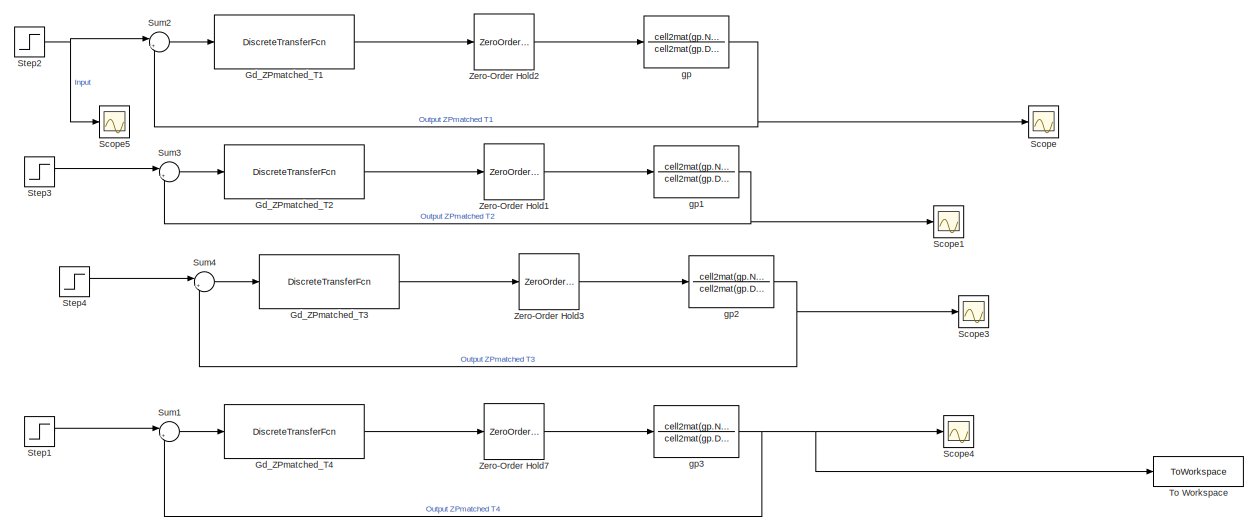
[diagram: root canvas - part 1/2, full width, top band]
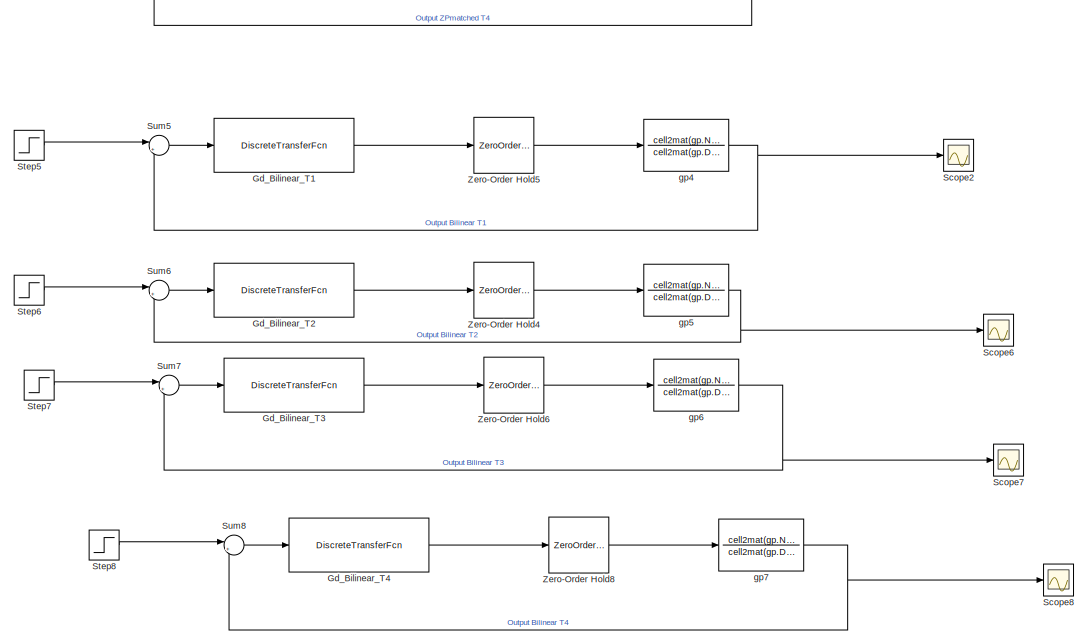
[diagram: root canvas - part 2/2, full width, bottom band]
MODEL slx_0fc6295562f9
KIND model
CONFIG AbsTol = auto
CONFIG EnableMultiTasking = off
CONFIG FixedStep = auto
CONFIG MaxStep = auto
CONFIG MinStep = auto
CONFIG RelTol = 1e-3
CONFIG SampleTimeConstraint = Unconstrained
CONFIG SolverName = VariableStepAuto
CONFIG StartTime = 0.0
CONFIG StopTime = 5
BLOCK [DiscreteTransferFcn] Gd_Bilinear_T1
  Denominator = cell2mat(Gd_Bilinear_T1.Denominator)
  InputPortMap = u0
  Numerator = cell2mat(Gd_Bilinear_T1.Numerator)
  Ports = [1, 1]
  SampleTime = Ts(1)
BLOCK [DiscreteTransferFcn] Gd_Bilinear_T2
  Denominator = cell2mat(Gd_Bilinear_T2.Denominator)
  InputPortMap = u0
  Numerator = cell2mat(Gd_Bilinear_T2.Numerator)
  Ports = [1, 1]
  SampleTime = Ts(2)
BLOCK [DiscreteTransferFcn] Gd_Bilinear_T3
  Denominator = cell2mat(Gd_Bilinear_T3.Denominator)
  InputPortMap = u0
  Numerator = cell2mat(Gd_Bilinear_T3.Numerator)
  Ports = [1, 1]
  SampleTime = Ts(3)
BLOCK [DiscreteTransferFcn] Gd_Bilinear_T4
  Denominator = cell2mat(Gd_Bilinear_T3.Denominator)
  InputPortMap = u0
  Numerator = cell2mat(Gd_Bilinear_T3.Numerator)
  Ports = [1, 1]
  SampleTime = Ts(4)
BLOCK [DiscreteTransferFcn] Gd_ZPmatched_T1
  Denominator = cell2mat(Gd_ZPmatched_T1.Denominator)
  InputPortMap = u0
  Numerator = cell2mat(Gd_ZPmatched_T1.Numerator)
  Ports = [1, 1]
  SampleTime = Ts(1)
BLOCK [DiscreteTransferFcn] Gd_ZPmatched_T2
  Denominator = cell2mat(Gd_ZPmatched_T2.Denominator)
  InputPortMap = u0
  Numerator = cell2mat(Gd_ZPmatched_T2.Numerator)
  Ports = [1, 1]
  SampleTime = Ts(2)
BLOCK [DiscreteTransferFcn] Gd_ZPmatched_T3
  Denominator = cell2mat(Gd_ZPmatched_T3.Denominator)
  InputPortMap = u0
  Numerator = cell2mat(Gd_ZPmatched_T3.Numerator)
  Ports = [1, 1]
  SampleTime = Ts(3)
BLOCK [DiscreteTransferFcn] Gd_ZPmatched_T4
  Denominator = cell2mat(Gd_ZPmatched_T4.Denominator)
  InputPortMap = u0
  Numerator = cell2mat(Gd_ZPmatched_T4.Numerator)
  Ports = [1, 1]
  SampleTime = Ts(4)
BLOCK [Scope] Scope
  Floating = off
  NumInputPorts = 1
  Ports = [1]
  ScopeSpecificationString = Simulink.scopes.TimeScopeBlockCfg('CurrentConfiguration', extmgr.ConfigurationSet(extmgr.Configuration('Core','General UI',true),extmgr.Configuration('Core','Source UI',true),extmgr.Configuration('Sources','WiredSimulink',true,'DataLoggingSaveFormat','Array','DataLoggingLimitDataPoints',true,'DataLoggingDecimation','1'),extmgr.Configuration('Visuals','Time Domain',true,'SerializedDisplays',{struct...<+2344ch>
BLOCK [Scope] Scope1
  Floating = off
  NumInputPorts = 1
  Ports = [1]
  ScopeSpecificationString = Simulink.scopes.TimeScopeBlockCfg('CurrentConfiguration', extmgr.ConfigurationSet(extmgr.Configuration('Core','General UI',true),extmgr.Configuration('Core','Source UI',true),extmgr.Configuration('Sources','WiredSimulink',true,'DataLoggingVariableName','ScopeData1','DataLoggingSaveFormat','Array','DataLoggingLimitDataPoints',true,'DataLoggingDecimation','1'),extmgr.Configuration('Visuals','Time Do...<+2191ch>
BLOCK [Scope] Scope2
  Floating = off
  NumInputPorts = 1
  Ports = [1]
  ScopeSpecificationString = Simulink.scopes.TimeScopeBlockCfg('CurrentConfiguration', extmgr.ConfigurationSet(extmgr.Configuration('Core','General UI',true),extmgr.Configuration('Core','Source UI',true),extmgr.Configuration('Sources','WiredSimulink',true,'DataLoggingVariableName','ScopeData2','DataLoggingSaveFormat','Array','DataLoggingLimitDataPoints',true,'DataLoggingDecimation','1'),extmgr.Configuration('Visuals','Time Do...<+2382ch>
BLOCK [Scope] Scope3
  Floating = off
  NumInputPorts = 1
  Ports = [1]
  ScopeSpecificationString = Simulink.scopes.TimeScopeBlockCfg('CurrentConfiguration', extmgr.ConfigurationSet(extmgr.Configuration('Core','General UI',true),extmgr.Configuration('Core','Source UI',true),extmgr.Configuration('Sources','WiredSimulink',true,'DataLoggingVariableName','ScopeData3','DataLoggingSaveFormat','Array','DataLoggingLimitDataPoints',true,'DataLoggingDecimation','1'),extmgr.Configuration('Visuals','Time Do...<+1723ch>
BLOCK [Scope] Scope4
  Floating = off
  NumInputPorts = 1
  Ports = [1]
  ScopeSpecificationString = Simulink.scopes.TimeScopeBlockCfg('CurrentConfiguration', extmgr.ConfigurationSet(extmgr.Configuration('Core','General UI',true),extmgr.Configuration('Core','Source UI',true),extmgr.Configuration('Sources','WiredSimulink',true,'DataLoggingVariableName','ScopeData4','DataLoggingSaveFormat','Array','DataLoggingLimitDataPoints',true,'DataLoggingDecimation','1'),extmgr.Configuration('Visuals','Time Do...<+1661ch>
BLOCK [Scope] Scope5
  Floating = off
  NumInputPorts = 1
  Ports = [1]
  ScopeSpecificationString = Simulink.scopes.TimeScopeBlockCfg('CurrentConfiguration', extmgr.ConfigurationSet(extmgr.Configuration('Core','General UI',true),extmgr.Configuration('Core','Source UI',true),extmgr.Configuration('Sources','WiredSimulink',true,'DataLoggingVariableName','ScopeData5','DataLoggingSaveFormat','Array','DataLoggingLimitDataPoints',true,'DataLoggingDecimation','1'),extmgr.Configuration('Visuals','Time Do...<+1613ch>
BLOCK [Scope] Scope6
  Floating = off
  NumInputPorts = 1
  Ports = [1]
  ScopeSpecificationString = Simulink.scopes.TimeScopeBlockCfg('CurrentConfiguration', extmgr.ConfigurationSet(extmgr.Configuration('Core','General UI',true),extmgr.Configuration('Core','Source UI',true),extmgr.Configuration('Sources','WiredSimulink',true,'DataLoggingVariableName','ScopeData6','DataLoggingSaveFormat','Array','DataLoggingLimitDataPoints',true,'DataLoggingDecimation','1'),extmgr.Configuration('Visuals','Time Do...<+2042ch>
BLOCK [Scope] Scope7
  Floating = off
  NumInputPorts = 1
  Ports = [1]
  ScopeSpecificationString = Simulink.scopes.TimeScopeBlockCfg('CurrentConfiguration', extmgr.ConfigurationSet(extmgr.Configuration('Core','General UI',true),extmgr.Configuration('Core','Source UI',true),extmgr.Configuration('Sources','WiredSimulink',true,'DataLoggingVariableName','ScopeData7','DataLoggingSaveFormat','Array','DataLoggingLimitDataPoints',true,'DataLoggingDecimation','1'),extmgr.Configuration('Visuals','Time Do...<+1660ch>
BLOCK [Scope] Scope8
  Floating = off
  NumInputPorts = 1
  Ports = [1]
  ScopeSpecificationString = Simulink.scopes.TimeScopeBlockCfg('CurrentConfiguration', extmgr.ConfigurationSet(extmgr.Configuration('Core','General UI',true),extmgr.Configuration('Core','Source UI',true),extmgr.Configuration('Sources','WiredSimulink',true,'DataLoggingVariableName','ScopeData8','DataLoggingSaveFormat','Array','DataLoggingLimitDataPoints',true,'DataLoggingDecimation','1'),extmgr.Configuration('Visuals','Time Do...<+2126ch>
BLOCK [Step] Step1
  After = 0.0001
  SampleTime = 0
  Time = 0
BLOCK [Step] Step2
  After = 0.0001
  SampleTime = 0
  Time = 0
BLOCK [Step] Step3
  After = 0.0001
  SampleTime = 0
  Time = 0
BLOCK [Step] Step4
  After = 0.0001
  SampleTime = 0
  Time = 0
BLOCK [Step] Step5
  After = 0.0001
  SampleTime = 0
  Time = 0
BLOCK [Step] Step6
  After = 0.0001
  SampleTime = 0
  Time = 0
BLOCK [Step] Step7
  After = 0.0001
  SampleTime = 0
  Time = 0
BLOCK [Step] Step8
  After = 0.0001
  SampleTime = 0
  Time = 0
BLOCK [Sum] Sum1
  Inputs = |+-
  Ports = [2, 1]
BLOCK [Sum] Sum2
  Inputs = |+-
  Ports = [2, 1]
BLOCK [Sum] Sum3
  Inputs = |+-
  Ports = [2, 1]
BLOCK [Sum] Sum4
  Inputs = |+-
  Ports = [2, 1]
BLOCK [Sum] Sum5
  Inputs = |+-
  Ports = [2, 1]
BLOCK [Sum] Sum6
  Inputs = |+-
  Ports = [2, 1]
BLOCK [Sum] Sum7
  Inputs = |+-
  Ports = [2, 1]
BLOCK [Sum] Sum8
  Inputs = |+-
  Ports = [2, 1]
BLOCK [ToWorkspace] To Workspace
  FixptAsFi = on
  MaxDataPoints = inf
  Ports = [1]
  SampleTime = -1
  SaveFormat = Timeseries
  VariableName = Parameter_Simulation
BLOCK [ZeroOrderHold] Zero-Order Hold1
  SampleTime = Ts(2)
BLOCK [ZeroOrderHold] Zero-Order Hold2
  SampleTime = Ts(1)
BLOCK [ZeroOrderHold] Zero-Order Hold3
  SampleTime = Ts(3)
BLOCK [ZeroOrderHold] Zero-Order Hold4
  SampleTime = Ts(2)
BLOCK [ZeroOrderHold] Zero-Order Hold5
  SampleTime = Ts(1)
BLOCK [ZeroOrderHold] Zero-Order Hold6
  SampleTime = Ts(3)
BLOCK [ZeroOrderHold] Zero-Order Hold7
  SampleTime = Ts(4)
BLOCK [ZeroOrderHold] Zero-Order Hold8
  SampleTime = Ts(4)
BLOCK [TransferFcn] gp
  Denominator = cell2mat(gp.Denominator)
  Numerator = cell2mat(gp.Numerator)
BLOCK [TransferFcn] gp1
  Denominator = cell2mat(gp.Denominator)
  Numerator = cell2mat(gp.Numerator)
BLOCK [TransferFcn] gp2
  Denominator = cell2mat(gp.Denominator)
  Numerator = cell2mat(gp.Numerator)
BLOCK [TransferFcn] gp3
  Denominator = cell2mat(gp.Denominator)
  Numerator = cell2mat(gp.Numerator)
BLOCK [TransferFcn] gp4
  Denominator = cell2mat(gp.Denominator)
  Numerator = cell2mat(gp.Numerator)
BLOCK [TransferFcn] gp5
  Denominator = cell2mat(gp.Denominator)
  Numerator = cell2mat(gp.Numerator)
BLOCK [TransferFcn] gp6
  Denominator = cell2mat(gp.Denominator)
  Numerator = cell2mat(gp.Numerator)
BLOCK [TransferFcn] gp7
  Denominator = cell2mat(gp.Denominator)
  Numerator = cell2mat(gp.Numerator)
LINE Gd_Bilinear_T1:1 -> Zero-Order Hold5:1
LINE Gd_Bilinear_T2:1 -> Zero-Order Hold4:1
LINE Gd_Bilinear_T3:1 -> Zero-Order Hold6:1
LINE Gd_Bilinear_T4:1 -> Zero-Order Hold8:1
LINE Gd_ZPmatched_T1:1 -> Zero-Order Hold2:1
LINE Gd_ZPmatched_T2:1 -> Zero-Order Hold1:1
LINE Gd_ZPmatched_T3:1 -> Zero-Order Hold3:1
LINE Gd_ZPmatched_T4:1 -> Zero-Order Hold7:1
LINE Step1:1 -> Sum1:1
NET Step2:1 -> Scope5:1, Sum2:1
LINE Step3:1 -> Sum3:1
LINE Step4:1 -> Sum4:1
LINE Step5:1 -> Sum5:1
LINE Step6:1 -> Sum6:1
LINE Step7:1 -> Sum7:1
LINE Step8:1 -> Sum8:1
LINE Sum1:1 -> Gd_ZPmatched_T4:1
LINE Sum2:1 -> Gd_ZPmatched_T1:1
LINE Sum3:1 -> Gd_ZPmatched_T2:1
LINE Sum4:1 -> Gd_ZPmatched_T3:1
LINE Sum5:1 -> Gd_Bilinear_T1:1
LINE Sum6:1 -> Gd_Bilinear_T2:1
LINE Sum7:1 -> Gd_Bilinear_T3:1
LINE Sum8:1 -> Gd_Bilinear_T4:1
LINE Zero-Order Hold1:1 -> gp1:1
LINE Zero-Order Hold2:1 -> gp:1
LINE Zero-Order Hold3:1 -> gp2:1
LINE Zero-Order Hold4:1 -> gp5:1
LINE Zero-Order Hold5:1 -> gp4:1
LINE Zero-Order Hold6:1 -> gp6:1
LINE Zero-Order Hold7:1 -> gp3:1
LINE Zero-Order Hold8:1 -> gp7:1
NET gp1:1 -> Scope1:1, Sum3:2
NET gp2:1 -> Scope3:1, Sum4:2
NET gp3:1 -> Scope4:1, Sum1:2, To Workspace:1
NET gp4:1 -> Scope2:1, Sum5:2
NET gp5:1 -> Scope6:1, Sum6:2
NET gp6:1 -> Scope7:1, Sum7:2
NET gp7:1 -> Scope8:1, Sum8:2
NET gp:1 -> Scope:1, Sum2:2
note: NET lines group one-source signal fan-out (src -> all destinations, sorted); 1:1 wires keep LINE
